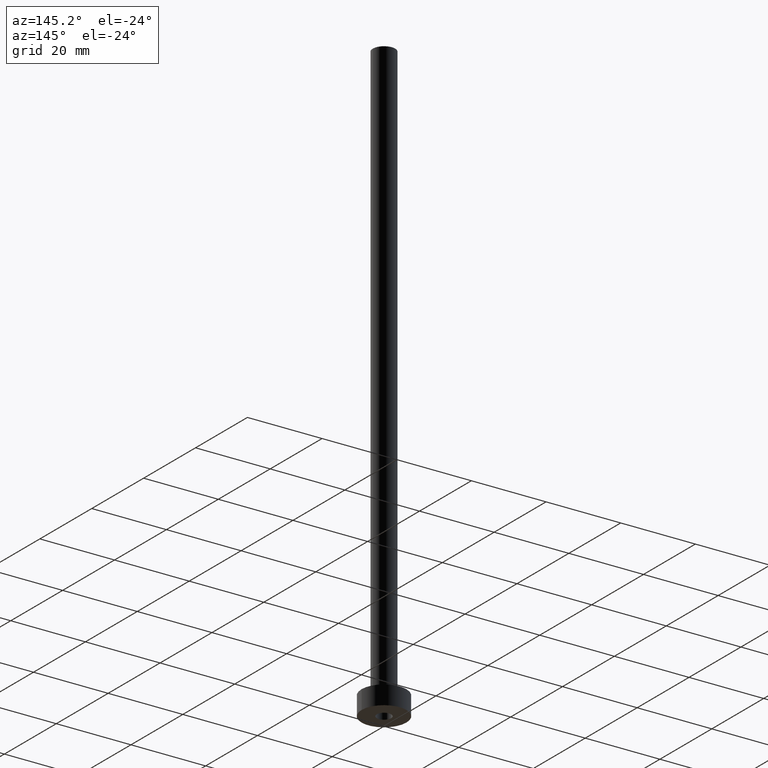
[diagram: clean part render]
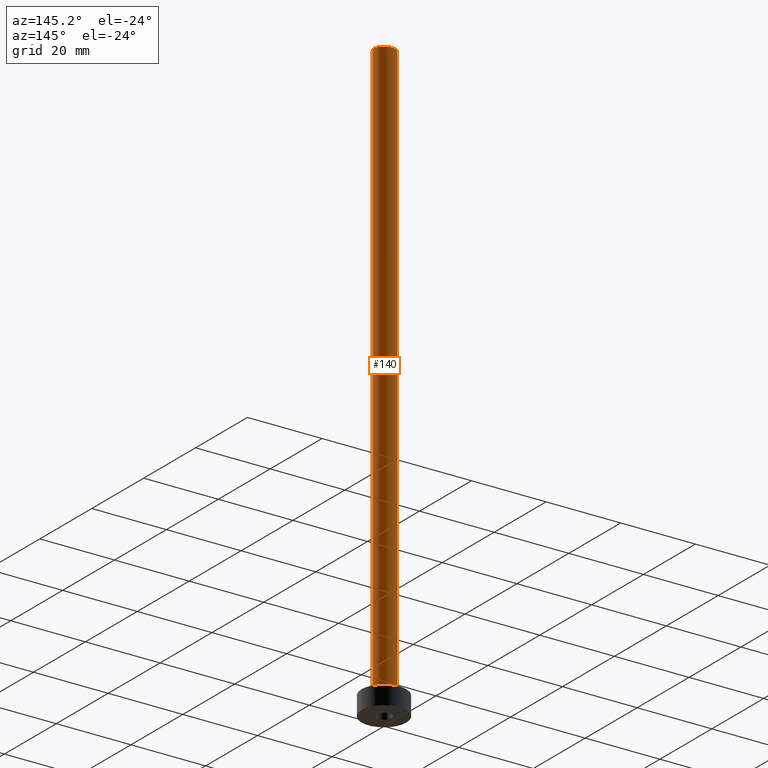
[diagram: same view with one face highlighted and labeled with its STEP entity id]
A machine part, auxiliary view. The second image highlights one B-rep face of the part: STEP entity #140.
In plain terms, the highlighted cylindrical surface (edge-blend (fillet) strip) has radius 3 mm, axis along (-0, -0, -1).
Its self-contained STEP definition (entity closure, byte-faithful):
#15 = VERTEX_POINT ( 'NONE', #100 ) ;
#36 = LINE ( 'NONE', #387, #154 ) ;
#47 = DIRECTION ( 'NONE',  ( -0.000000000000000000, -0.000000000000000000, -1.000000000000000000 ) ) ;
#54 = ORIENTED_EDGE ( 'NONE', *, *, #174, .F. ) ;
#58 = DIRECTION ( 'NONE',  ( 1.000000000000000000, 0.000000000000000000, 0.000000000000000000 ) ) ;
#60 = EDGE_CURVE ( 'NONE', #452, #81, #351, .T. ) ;
#81 = VERTEX_POINT ( 'NONE', #195 ) ;
#90 = CARTESIAN_POINT ( 'NONE',  ( 0.000000000000000000, 0.000000000000000000, 160.0000000000000000 ) ) ;
#100 = CARTESIAN_POINT ( 'NONE',  ( 3.000000000000000444, 3.673940397442060361E-16, 160.0000000000000000 ) ) ;
#101 = CARTESIAN_POINT ( 'NONE',  ( -3.000000000000000444, 0.000000000000000000, 160.0000000000000000 ) ) ;
#112 = AXIS2_PLACEMENT_3D ( 'NONE', #411, #446, #58 ) ;
#128 = ORIENTED_EDGE ( 'NONE', *, *, #409, .T. ) ;
#140 = ADVANCED_FACE ( 'NONE', ( #277 ), #247, .T. ) ;
#148 = DIRECTION ( 'NONE',  ( -0.000000000000000000, -0.000000000000000000, -1.000000000000000000 ) ) ;
#154 = VECTOR ( 'NONE', #317, 1000.000000000000000 ) ;
#174 = EDGE_CURVE ( 'NONE', #15, #367, #381, .T. ) ;
#195 = CARTESIAN_POINT ( 'NONE',  ( -3.000000000000000444, 0.000000000000000000, 5.299999999999998934 ) ) ;
#218 = CARTESIAN_POINT ( 'NONE',  ( -3.000000000000000444, 0.000000000000000000, 160.0000000000000000 ) ) ;
#226 = EDGE_LOOP ( 'NONE', ( #54, #128, #401, #306 ) ) ;
#247 = CYLINDRICAL_SURFACE ( 'NONE', #391, 3.000000000000000444 ) ;
#253 = CARTESIAN_POINT ( 'NONE',  ( 3.000000000000000444, 3.673940397442060361E-16, 5.299999999999998934 ) ) ;
#260 = DIRECTION ( 'NONE',  ( 0.000000000000000000, 0.000000000000000000, 1.000000000000000000 ) ) ;
#274 = DIRECTION ( 'NONE',  ( -1.000000000000000000, 0.000000000000000000, 0.000000000000000000 ) ) ;
#277 = FACE_OUTER_BOUND ( 'NONE', #226, .T. ) ;
#282 = AXIS2_PLACEMENT_3D ( 'NONE', #435, #260, #323 ) ;
#306 = ORIENTED_EDGE ( 'NONE', *, *, #423, .F. ) ;
#317 = DIRECTION ( 'NONE',  ( -0.000000000000000000, -0.000000000000000000, -1.000000000000000000 ) ) ;
#323 = DIRECTION ( 'NONE',  ( 1.000000000000000000, 0.000000000000000000, 0.000000000000000000 ) ) ;
#351 = CIRCLE ( 'NONE', #282, 3.000000000000000444 ) ;
#367 = VERTEX_POINT ( 'NONE', #218 ) ;
#381 = CIRCLE ( 'NONE', #112, 3.000000000000000444 ) ;
#387 = CARTESIAN_POINT ( 'NONE',  ( 3.000000000000000444, 3.673940397442060361E-16, 160.0000000000000000 ) ) ;
#391 = AXIS2_PLACEMENT_3D ( 'NONE', #90, #47, #274 ) ;
#401 = ORIENTED_EDGE ( 'NONE', *, *, #60, .T. ) ;
#409 = EDGE_CURVE ( 'NONE', #15, #452, #36, .T. ) ;
#411 = CARTESIAN_POINT ( 'NONE',  ( 0.000000000000000000, 0.000000000000000000, 160.0000000000000000 ) ) ;
#423 = EDGE_CURVE ( 'NONE', #367, #81, #427, .T. ) ;
#427 = LINE ( 'NONE', #101, #451 ) ;
#435 = CARTESIAN_POINT ( 'NONE',  ( 0.000000000000000000, 0.000000000000000000, 5.299999999999998934 ) ) ;
#446 = DIRECTION ( 'NONE',  ( 0.000000000000000000, 0.000000000000000000, 1.000000000000000000 ) ) ;
#451 = VECTOR ( 'NONE', #148, 1000.000000000000000 ) ;
#452 = VERTEX_POINT ( 'NONE', #253 ) ;